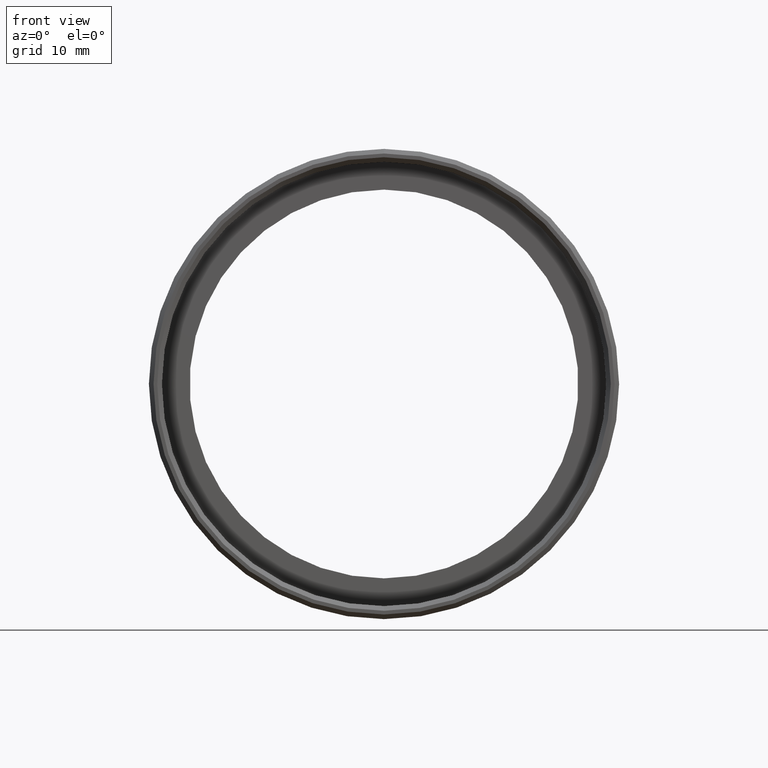
[diagram: clean part render]
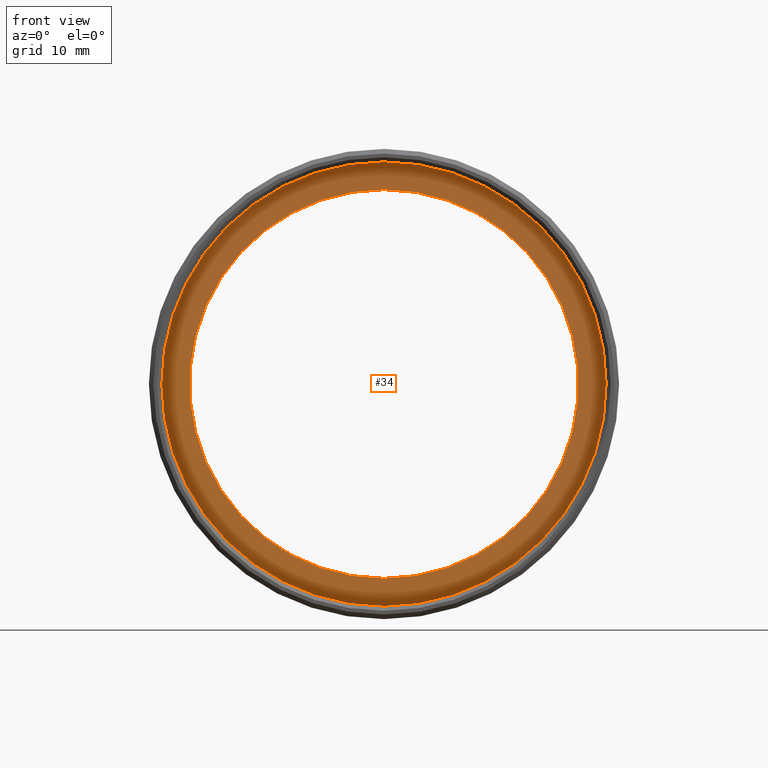
[diagram: same view with one face highlighted and labeled with its STEP entity id]
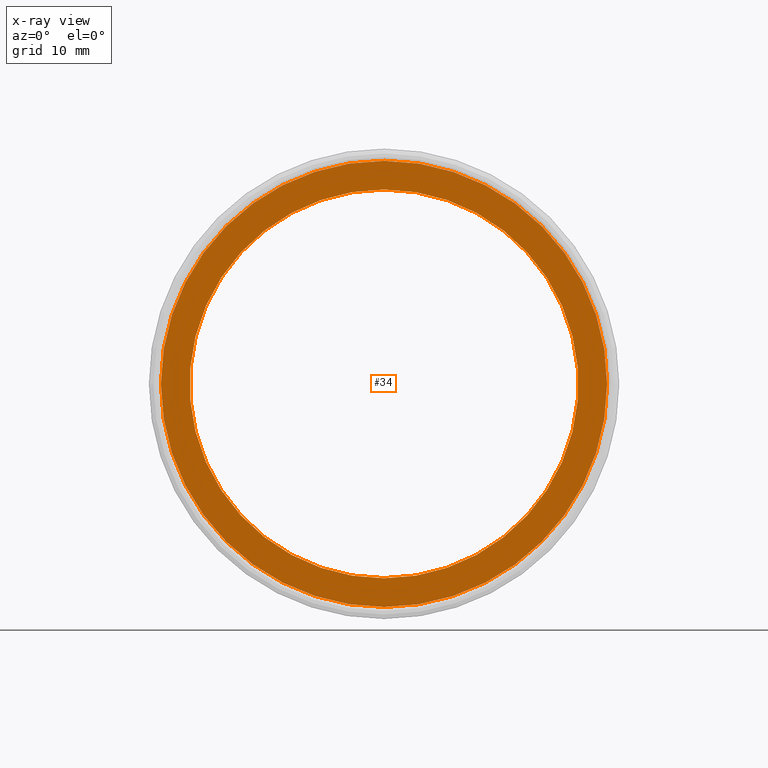
[diagram: x-ray of the same camera — body ghosted, the highlighted face saturated]
A machine part, front view. The second image highlights one B-rep face of the part: STEP entity #34.
The next image is the same camera in x-ray: the body ghosted, the highlighted face saturated — about 0% of this face is hidden behind the body in this view.
In plain terms, the highlighted planar face has unit normal (-0, 1, 0).
Its self-contained STEP definition (entity closure, byte-faithful):
#1 = CARTESIAN_POINT ( 'NONE',  ( 0.0000000000000000000, -0.3571458254331069700, 0.0000000000000000000 ) ) ;
#25 = DIRECTION ( 'NONE',  ( 0.0000000000000000000, 0.0000000000000000000, 1.000000000000000000 ) ) ;
#30 = ORIENTED_EDGE ( 'NONE', *, *, #580, .F. ) ;
#34 = ADVANCED_FACE ( 'NONE', ( #829, #400 ), #731, .F. ) ;
#88 = VERTEX_POINT ( 'NONE', #386 ) ;
#92 = DIRECTION ( 'NONE',  ( 0.0000000000000000000, 0.0000000000000000000, 1.000000000000000000 ) ) ;
#113 = DIRECTION ( 'NONE',  ( -0.0000000000000000000, 1.000000000000000000, 0.0000000000000000000 ) ) ;
#146 = DIRECTION ( 'NONE',  ( -0.0000000000000000000, 1.000000000000000000, -0.0000000000000000000 ) ) ;
#149 = CIRCLE ( 'NONE', #742, 24.10000000000000900 ) ;
#155 = DIRECTION ( 'NONE',  ( -0.0000000000000000000, 1.000000000000000000, -0.0000000000000000000 ) ) ;
#174 = CIRCLE ( 'NONE', #525, 21.00000000000000700 ) ;
#187 = EDGE_LOOP ( 'NONE', ( #268, #669 ) ) ;
#240 = DIRECTION ( 'NONE',  ( 0.0000000000000000000, 0.0000000000000000000, 1.000000000000000000 ) ) ;
#264 = DIRECTION ( 'NONE',  ( -0.0000000000000000000, 1.000000000000000000, -0.0000000000000000000 ) ) ;
#268 = ORIENTED_EDGE ( 'NONE', *, *, #871, .T. ) ;
#332 = DIRECTION ( 'NONE',  ( 0.0000000000000000000, 0.0000000000000000000, 1.000000000000000000 ) ) ;
#353 = VERTEX_POINT ( 'NONE', #687 ) ;
#354 = VERTEX_POINT ( 'NONE', #762 ) ;
#357 = CARTESIAN_POINT ( 'NONE',  ( 0.0000000000000000000, -0.3571458254331069700, 0.0000000000000000000 ) ) ;
#386 = CARTESIAN_POINT ( 'NONE',  ( 0.0000000000000000000, -0.3571458254331069700, 21.00000000000000700 ) ) ;
#400 = FACE_BOUND ( 'NONE', #187, .T. ) ;
#436 = CARTESIAN_POINT ( 'NONE',  ( 2.571758278209442400E-015, -0.3571458254331069700, -21.00000000000000700 ) ) ;
#463 = AXIS2_PLACEMENT_3D ( 'NONE', #357, #858, #25 ) ;
#525 = AXIS2_PLACEMENT_3D ( 'NONE', #694, #155, #92 ) ;
#548 = AXIS2_PLACEMENT_3D ( 'NONE', #609, #113, #240 ) ;
#580 = EDGE_CURVE ( 'NONE', #353, #354, #149, .T. ) ;
#609 = CARTESIAN_POINT ( 'NONE',  ( 24.10000000000000900, -0.3571458254331061900, 0.0000000000000000000 ) ) ;
#617 = CIRCLE ( 'NONE', #695, 24.10000000000000900 ) ;
#625 = DIRECTION ( 'NONE',  ( 0.0000000000000000000, 0.0000000000000000000, 1.000000000000000000 ) ) ;
#627 = EDGE_CURVE ( 'NONE', #354, #353, #617, .T. ) ;
#628 = CARTESIAN_POINT ( 'NONE',  ( 0.0000000000000000000, -0.3571458254331069700, 0.0000000000000000000 ) ) ;
#669 = ORIENTED_EDGE ( 'NONE', *, *, #672, .T. ) ;
#672 = EDGE_CURVE ( 'NONE', #864, #88, #174, .T. ) ;
#678 = ORIENTED_EDGE ( 'NONE', *, *, #627, .F. ) ;
#687 = CARTESIAN_POINT ( 'NONE',  ( 0.0000000000000000000, -0.3571458254331069700, 24.10000000000000900 ) ) ;
#694 = CARTESIAN_POINT ( 'NONE',  ( 0.0000000000000000000, -0.3571458254331069700, 0.0000000000000000000 ) ) ;
#695 = AXIS2_PLACEMENT_3D ( 'NONE', #628, #146, #332 ) ;
#731 = PLANE ( 'NONE',  #548 ) ;
#733 = CIRCLE ( 'NONE', #463, 21.00000000000000700 ) ;
#742 = AXIS2_PLACEMENT_3D ( 'NONE', #1, #264, #625 ) ;
#762 = CARTESIAN_POINT ( 'NONE',  ( 2.951398785945122000E-015, -0.3571458254331069700, -24.10000000000000900 ) ) ;
#771 = EDGE_LOOP ( 'NONE', ( #30, #678 ) ) ;
#829 = FACE_OUTER_BOUND ( 'NONE', #771, .T. ) ;
#858 = DIRECTION ( 'NONE',  ( -0.0000000000000000000, 1.000000000000000000, -0.0000000000000000000 ) ) ;
#864 = VERTEX_POINT ( 'NONE', #436 ) ;
#871 = EDGE_CURVE ( 'NONE', #88, #864, #733, .T. ) ;